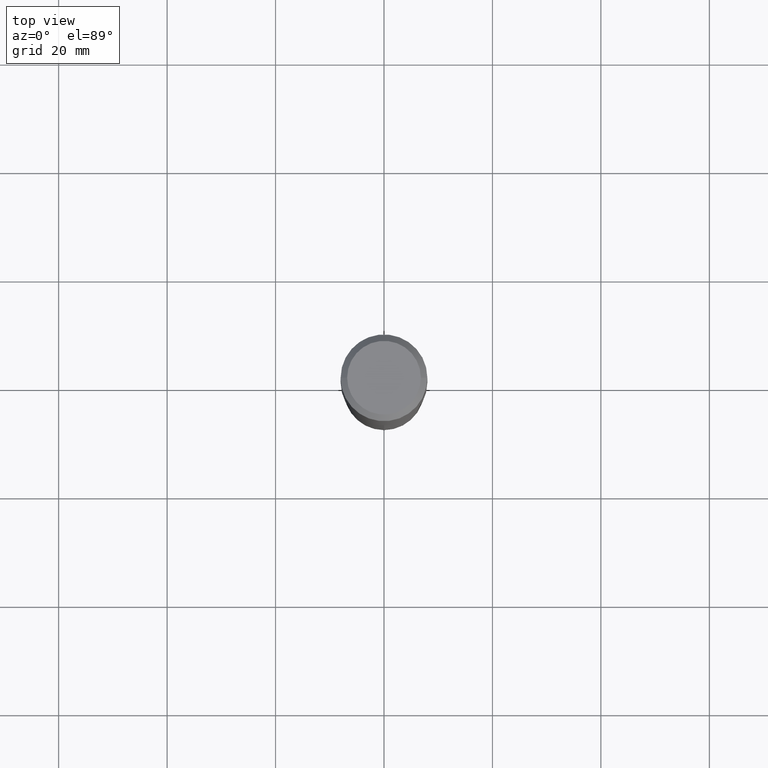
[diagram: clean part render]
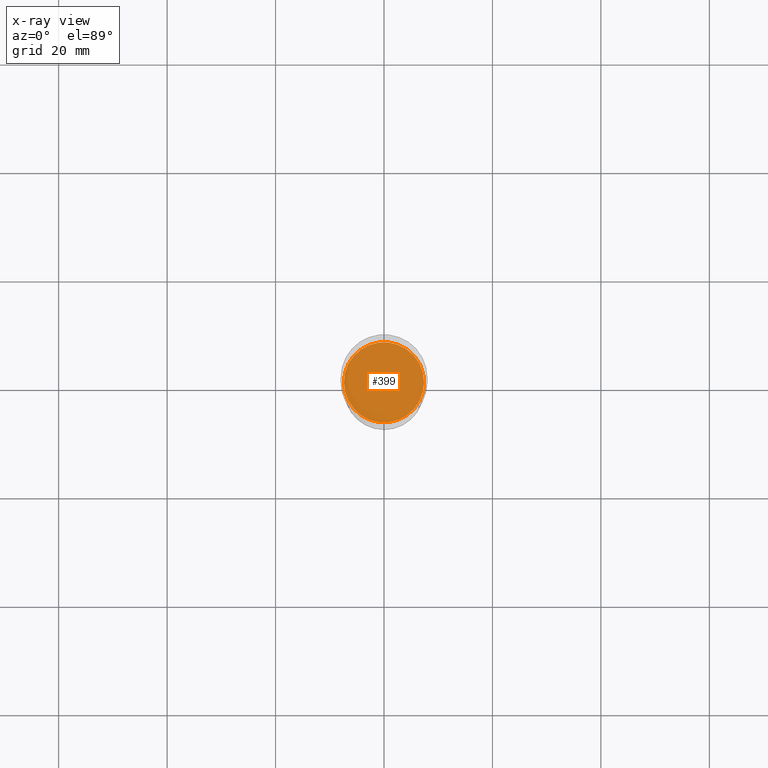
[diagram: x-ray — body ghosted, one internal face saturated and labeled with its STEP entity id]
A machine part, top view, then the same camera in x-ray: the body is ghosted and one INTERNAL B-rep face — a face not visible from any outside direction — is saturated and labeled: STEP entity #399.
In plain terms, the highlighted planar face has unit normal (-0, 0, 1).
Its self-contained STEP definition (entity closure, byte-faithful):
#35 = DIRECTION ( 'NONE',  ( 1.000000000000000000, -6.982962677686266711E-15, 0.000000000000000000 ) ) ;
#41 = DIRECTION ( 'NONE',  ( -2.438088387897960049E-29, 3.491481338843145188E-15, 1.000000000000000000 ) ) ;
#81 = DIRECTION ( 'NONE',  ( 1.000000000000000000, -6.982962677686265922E-15, 4.876176775795935793E-29 ) ) ;
#102 = CIRCLE ( 'NONE', #296, 0.2908499999999999974 ) ;
#117 = CARTESIAN_POINT ( 'NONE',  ( 4.813416251214202584E-29, -6.872282719244960739E-15, -1.968299999999999272 ) ) ;
#178 = EDGE_CURVE ( 'NONE', #410, #356, #366, .T. ) ;
#187 = ORIENTED_EDGE ( 'NONE', *, *, #300, .F. ) ;
#191 = DIRECTION ( 'NONE',  ( -2.445468806185136597E-29, 3.491481338843145583E-15, 1.000000000000000000 ) ) ;
#225 = CARTESIAN_POINT ( 'NONE',  ( 4.813416251214202584E-29, -6.872282719244960739E-15, -1.968299999999999272 ) ) ;
#245 = ORIENTED_EDGE ( 'NONE', *, *, #178, .F. ) ;
#279 = EDGE_LOOP ( 'NONE', ( #187, #245 ) ) ;
#296 = AXIS2_PLACEMENT_3D ( 'NONE', #373, #191, #313 ) ;
#300 = EDGE_CURVE ( 'NONE', #356, #410, #102, .T. ) ;
#302 = FACE_OUTER_BOUND ( 'NONE', #279, .T. ) ;
#313 = DIRECTION ( 'NONE',  ( 1.000000000000000000, -6.982962677686266711E-15, 0.000000000000000000 ) ) ;
#356 = VERTEX_POINT ( 'NONE', #423 ) ;
#361 = PLANE ( 'NONE',  #417 ) ;
#366 = CIRCLE ( 'NONE', #380, 0.2908499999999999974 ) ;
#373 = CARTESIAN_POINT ( 'NONE',  ( 4.813416251214202584E-29, -6.872282719244960739E-15, -1.968299999999999272 ) ) ;
#380 = AXIS2_PLACEMENT_3D ( 'NONE', #225, #390, #35 ) ;
#390 = DIRECTION ( 'NONE',  ( -2.445468806185136597E-29, 3.491481338843145583E-15, 1.000000000000000000 ) ) ;
#391 = CARTESIAN_POINT ( 'NONE',  ( -0.2908499999999999974, -4.803019945112598560E-15, -1.968299999999999272 ) ) ;
#399 = ADVANCED_FACE ( 'NONE', ( #302 ), #361, .F. ) ;
#410 = VERTEX_POINT ( 'NONE', #391 ) ;
#417 = AXIS2_PLACEMENT_3D ( 'NONE', #117, #41, #81 ) ;
#423 = CARTESIAN_POINT ( 'NONE',  ( 0.2908499999999999974, -8.903277414050010566E-15, -1.968299999999999272 ) ) ;